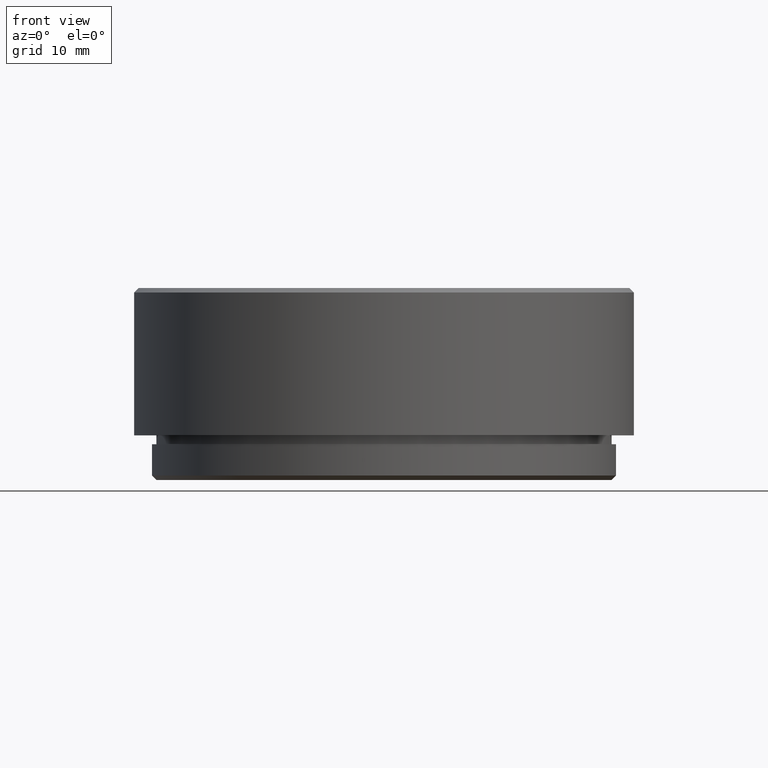
[diagram: clean part render]
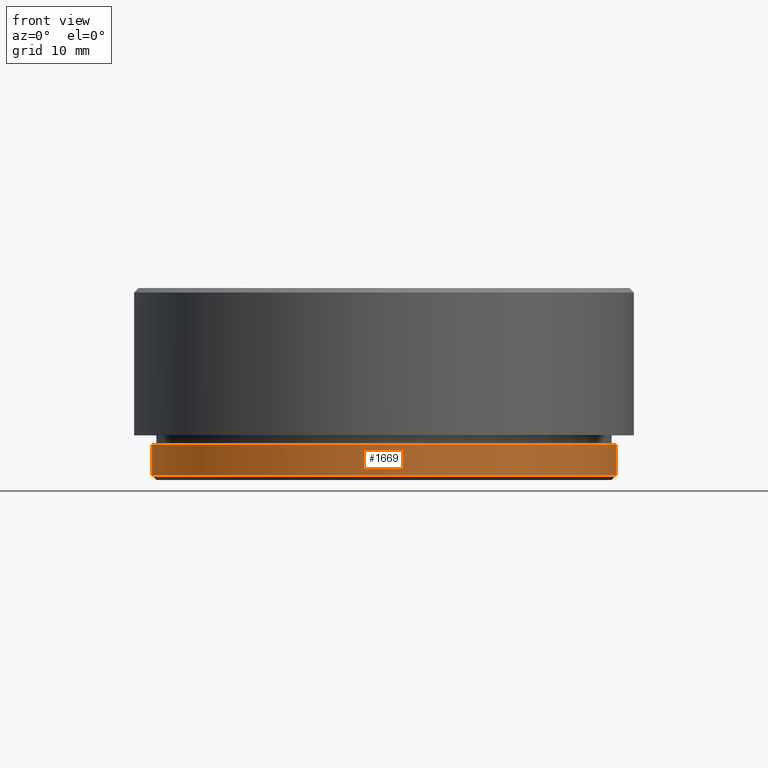
[diagram: same view with one face highlighted and labeled with its STEP entity id]
A machine part, front view. The second image highlights one B-rep face of the part: STEP entity #1669.
In plain terms, the highlighted cylindrical surface (partial cylindrical patch) has radius 26 mm, axis along (-0, -0, -1).
Its self-contained STEP definition (entity closure, byte-faithful):
#35 = CARTESIAN_POINT ( 'NONE',  ( 0.000000000000000000, 0.000000000000000000, 5.000000000000000000 ) ) ;
#46 = FACE_OUTER_BOUND ( 'NONE', #975, .T. ) ;
#117 = EDGE_CURVE ( 'NONE', #179, #1078, #1289, .T. ) ;
#164 = CARTESIAN_POINT ( 'NONE',  ( 26.00000000000000355, 3.184081677783118585E-15, 4.000000000000000000 ) ) ;
#179 = VERTEX_POINT ( 'NONE', #164 ) ;
#214 = CARTESIAN_POINT ( 'NONE',  ( 0.000000000000000000, 0.000000000000000000, 4.000000000000000000 ) ) ;
#264 = ORIENTED_EDGE ( 'NONE', *, *, #1674, .T. ) ;
#417 = AXIS2_PLACEMENT_3D ( 'NONE', #35, #706, #440 ) ;
#440 = DIRECTION ( 'NONE',  ( -1.000000000000000000, 0.000000000000000000, 0.000000000000000000 ) ) ;
#499 = DIRECTION ( 'NONE',  ( 0.000000000000000000, 0.000000000000000000, -1.000000000000000000 ) ) ;
#511 = DIRECTION ( 'NONE',  ( 1.000000000000000000, 0.000000000000000000, 0.000000000000000000 ) ) ;
#533 = VERTEX_POINT ( 'NONE', #1355 ) ;
#544 = VECTOR ( 'NONE', #1395, 1000.000000000000000 ) ;
#551 = ORIENTED_EDGE ( 'NONE', *, *, #626, .T. ) ;
#566 = DIRECTION ( 'NONE',  ( -0.000000000000000000, -0.000000000000000000, -1.000000000000000000 ) ) ;
#600 = CARTESIAN_POINT ( 'NONE',  ( -26.00000000000000355, 0.000000000000000000, 0.5000000000000247580 ) ) ;
#626 = EDGE_CURVE ( 'NONE', #179, #533, #1348, .T. ) ;
#642 = CARTESIAN_POINT ( 'NONE',  ( 0.000000000000000000, 0.000000000000000000, 0.5000000000000247580 ) ) ;
#655 = CIRCLE ( 'NONE', #1639, 26.00000000000000355 ) ;
#706 = DIRECTION ( 'NONE',  ( -0.000000000000000000, -0.000000000000000000, -1.000000000000000000 ) ) ;
#814 = CARTESIAN_POINT ( 'NONE',  ( 26.00000000000000355, 3.184081677783118585E-15, 0.5000000000000247580 ) ) ;
#975 = EDGE_LOOP ( 'NONE', ( #1271, #551, #264, #1231 ) ) ;
#1078 = VERTEX_POINT ( 'NONE', #814 ) ;
#1155 = EDGE_CURVE ( 'NONE', #1652, #1078, #655, .T. ) ;
#1165 = CARTESIAN_POINT ( 'NONE',  ( 26.00000000000000355, 3.184081677783118585E-15, 5.000000000000000000 ) ) ;
#1177 = DIRECTION ( 'NONE',  ( -1.000000000000000000, 0.000000000000000000, 0.000000000000000000 ) ) ;
#1231 = ORIENTED_EDGE ( 'NONE', *, *, #1155, .T. ) ;
#1256 = LINE ( 'NONE', #1647, #1419 ) ;
#1271 = ORIENTED_EDGE ( 'NONE', *, *, #117, .F. ) ;
#1289 = LINE ( 'NONE', #1165, #544 ) ;
#1348 = CIRCLE ( 'NONE', #1651, 26.00000000000000355 ) ;
#1355 = CARTESIAN_POINT ( 'NONE',  ( -26.00000000000000355, 0.000000000000000000, 4.000000000000000000 ) ) ;
#1377 = CYLINDRICAL_SURFACE ( 'NONE', #417, 26.00000000000000355 ) ;
#1395 = DIRECTION ( 'NONE',  ( -0.000000000000000000, -0.000000000000000000, -1.000000000000000000 ) ) ;
#1419 = VECTOR ( 'NONE', #566, 1000.000000000000000 ) ;
#1452 = DIRECTION ( 'NONE',  ( 0.000000000000000000, 0.000000000000000000, 1.000000000000000000 ) ) ;
#1639 = AXIS2_PLACEMENT_3D ( 'NONE', #642, #1452, #511 ) ;
#1647 = CARTESIAN_POINT ( 'NONE',  ( -26.00000000000000355, 0.000000000000000000, 5.000000000000000000 ) ) ;
#1651 = AXIS2_PLACEMENT_3D ( 'NONE', #214, #499, #1177 ) ;
#1652 = VERTEX_POINT ( 'NONE', #600 ) ;
#1669 = ADVANCED_FACE ( 'NONE', ( #46 ), #1377, .T. ) ;
#1674 = EDGE_CURVE ( 'NONE', #533, #1652, #1256, .T. ) ;